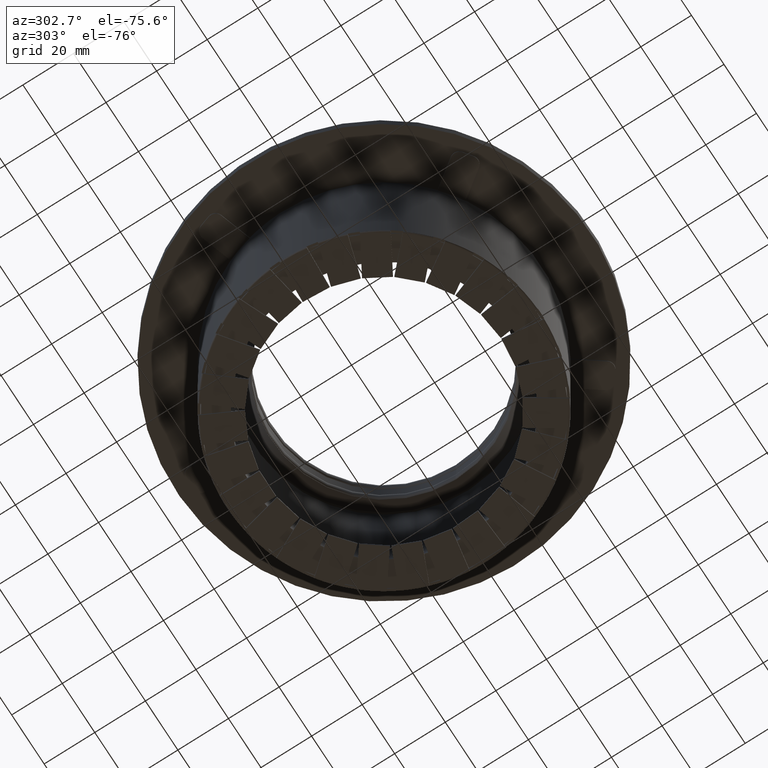
[diagram: clean part render]
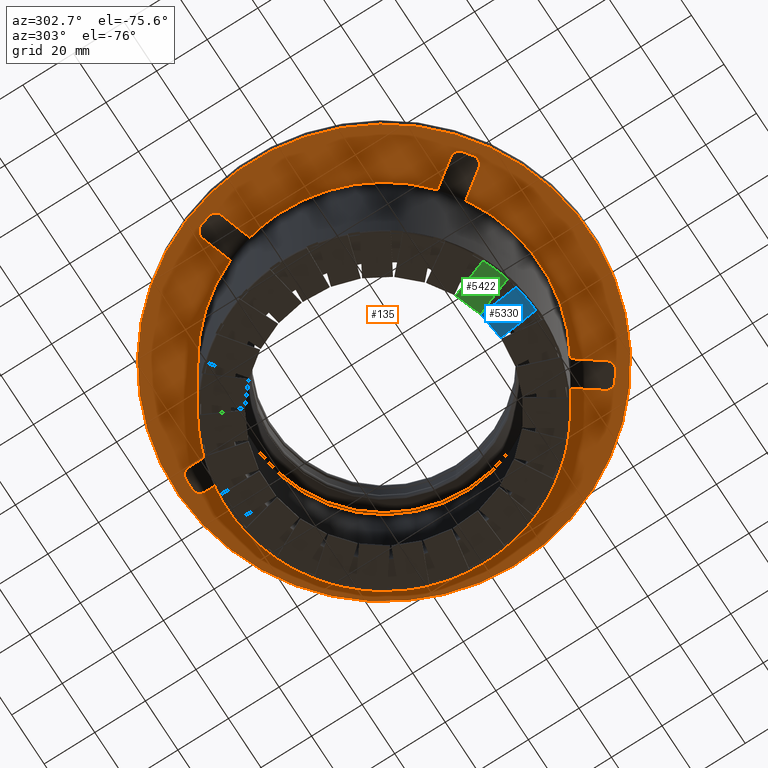
[diagram: same view with three faces highlighted in distinct colors, each labeled with its STEP entity id]
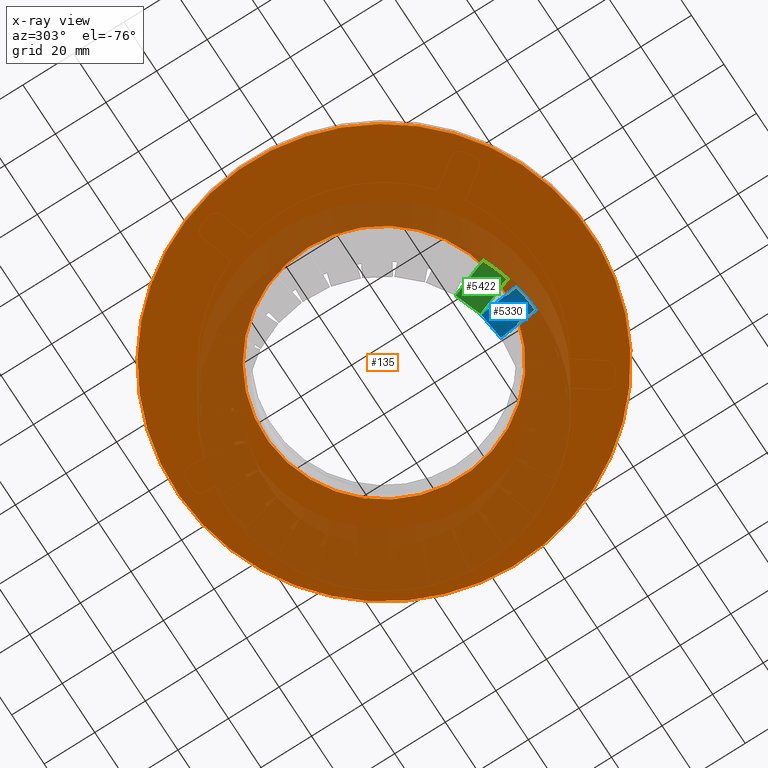
[diagram: x-ray of the same camera — body ghosted, the three highlighted faces saturated]
A machine part, auxiliary view with three faces highlighted in distinct colors.
The next image is the same camera in x-ray (body ghosted, the three faces saturated) — at least one of them is partly hidden behind the body in this view.
Their STEP definitions:

[orange] entity #135 — the highlighted planar face has unit normal (0, 0, 1).
#73=CARTESIAN_POINT('',(2.646618507755572,-46.925423924290826,64.099999999999994));
#74=VERTEX_POINT('',#73);
#75=CARTESIAN_POINT('',(1.591479E-014,-3.194574E-015,64.099999999999994));
#76=DIRECTION('',(7.883916E-019,-1.397845E-017,1.0));
#77=DIRECTION('',(-0.056311032079906,0.998413274984911,1.400066E-017));
#78=AXIS2_PLACEMENT_3D('',#75,#76,#77);
#79=CIRCLE('',#78,47.0);
#80=EDGE_CURVE('',#74,#74,#79,.T.);
#101=CARTESIAN_POINT('',(4.617504630552262,-81.869888548762731,64.099999999999994));
#102=VERTEX_POINT('',#101);
#103=CARTESIAN_POINT('',(1.591479E-014,-3.194574E-015,64.099999999999994));
#104=DIRECTION('',(7.883916E-019,-1.397845E-017,1.0));
#105=DIRECTION('',(-0.056311032079906,0.998413274984911,1.400066E-017));
#106=AXIS2_PLACEMENT_3D('',#103,#104,#105);
#107=CIRCLE('',#106,82.000000000000014);
#108=EDGE_CURVE('',#102,#102,#107,.T.);
#124=CARTESIAN_POINT('',(1.591479E-014,-3.194574E-015,64.099999999999994));
#125=DIRECTION('',(0.0,0.0,1.0));
#126=DIRECTION('',(-0.056311032079906,0.998413274984911,0.0));
#127=AXIS2_PLACEMENT_3D('',#124,#125,#126);
#128=PLANE('',#127);
#129=ORIENTED_EDGE('',*,*,#108,.F.);
#130=EDGE_LOOP('',(#129));
#131=FACE_OUTER_BOUND('',#130,.T.);
#132=ORIENTED_EDGE('',*,*,#80,.T.);
#133=EDGE_LOOP('',(#132));
#134=FACE_BOUND('',#133,.T.);
#135=ADVANCED_FACE('',(#131,#134),#128,.F.);

[blue] entity #5330 — the highlighted planar face has unit normal (0, 0, 1).
#2948=CARTESIAN_POINT('',(-1.976158821490712,-61.268138508626528,-0.9));
#2949=VERTEX_POINT('',#2948);
#2964=CARTESIAN_POINT('',(-12.206513906232725,-60.072381493136653,-0.9));
#2965=VERTEX_POINT('',#2964);
#2979=CARTESIAN_POINT('',(0.0,0.0,-0.9));
#2980=DIRECTION('',(0.0,0.0,1.0));
#2981=DIRECTION('',(-0.11609291412523,-0.993238357741943,0.0));
#2982=AXIS2_PLACEMENT_3D('',#2979,#2980,#2981);
#2983=CIRCLE('',#2982,61.299999999999997);
#2984=EDGE_CURVE('',#2965,#2949,#2983,.T.);
#3012=CARTESIAN_POINT('',(-10.455451592131602,-45.09108594838446,-0.9));
#3013=VERTEX_POINT('',#3012);
#3020=CARTESIAN_POINT('',(-10.455451592131602,-45.09108594838446,-0.9));
#3021=DIRECTION('',(-0.11609291412523,-0.993238357741943,0.0));
#3022=VECTOR('',#3021,15.083283310575224);
#3023=LINE('',#3020,#3022);
#3024=EDGE_CURVE('',#3013,#2965,#3023,.T.);
#5262=CARTESIAN_POINT('',(-0.225096507389584,-46.286842963874328,-0.9));
#5263=VERTEX_POINT('',#5262);
#5264=CARTESIAN_POINT('',(-0.225096507389584,-46.286842963874328,-0.9));
#5265=DIRECTION('',(-0.993238357741943,0.116092914125229,0.0));
#5266=VECTOR('',#5265,10.300000000000004);
#5267=LINE('',#5264,#5266);
#5268=EDGE_CURVE('',#5263,#3013,#5267,.T.);
#5294=CARTESIAN_POINT('',(-1.976158821490712,-61.268138508626528,-0.9));
#5295=DIRECTION('',(0.11609291412523,0.993238357741943,0.0));
#5296=VECTOR('',#5295,15.083283310575238);
#5297=LINE('',#5294,#5296);
#5298=EDGE_CURVE('',#2949,#5263,#5297,.T.);
#5319=CARTESIAN_POINT('',(-6.25973777096771,-53.555479336356548,-0.9));
#5320=DIRECTION('',(0.0,0.0,1.0));
#5321=DIRECTION('',(-0.993238357741943,0.11609291412523,0.0));
#5322=AXIS2_PLACEMENT_3D('',#5319,#5320,#5321);
#5323=PLANE('',#5322);
#5324=ORIENTED_EDGE('',*,*,#2984,.F.);
#5325=ORIENTED_EDGE('',*,*,#3024,.F.);
#5326=ORIENTED_EDGE('',*,*,#5268,.F.);
#5327=ORIENTED_EDGE('',*,*,#5298,.F.);
#5328=EDGE_LOOP('',(#5324,#5325,#5326,#5327));
#5329=FACE_OUTER_BOUND('',#5328,.T.);
#5330=ADVANCED_FACE('',(#5329),#5323,.F.);

[green] entity #5422 — the highlighted planar face has unit normal (0, 0, 1).
#3034=CARTESIAN_POINT('',(-16.05229631563795,-59.160914318449791,-0.9));
#3035=VERTEX_POINT('',#3034);
#3050=CARTESIAN_POINT('',(-25.731130309732798,-55.638106842195398,-0.9));
#3051=VERTEX_POINT('',#3050);
#3065=CARTESIAN_POINT('',(0.0,0.0,-0.9));
#3066=DIRECTION('',(0.0,0.0,1.0));
#3067=DIRECTION('',(-0.342020143325669,-0.939692620785908,0.0));
#3068=AXIS2_PLACEMENT_3D('',#3065,#3066,#3067);
#3069=CIRCLE('',#3068,61.299999999999997);
#3070=EDGE_CURVE('',#3051,#3035,#3069,.T.);
#3098=CARTESIAN_POINT('',(-20.572343590028197,-41.464456818024615,-0.9));
#3099=VERTEX_POINT('',#3098);
#3106=CARTESIAN_POINT('',(-20.572343590028197,-41.464456818024615,-0.9));
#3107=DIRECTION('',(-0.342020143325669,-0.939692620785909,0.0));
#3108=VECTOR('',#3107,15.08328331057522);
#3109=LINE('',#3106,#3108);
#3110=EDGE_CURVE('',#3099,#3051,#3109,.T.);
#5354=CARTESIAN_POINT('',(-10.893509595933338,-44.987264294279001,-0.9));
#5355=VERTEX_POINT('',#5354);
#5356=CARTESIAN_POINT('',(-10.893509595933338,-44.987264294279001,-0.9));
#5357=DIRECTION('',(-0.939692620785909,0.342020143325668,0.0));
#5358=VECTOR('',#5357,10.300000000000002);
#5359=LINE('',#5356,#5358);
#5360=EDGE_CURVE('',#5355,#3099,#5359,.T.);
#5386=CARTESIAN_POINT('',(-16.052296315637953,-59.160914318449784,-0.9));
#5387=DIRECTION('',(0.342020143325669,0.939692620785908,0.0));
#5388=VECTOR('',#5387,15.083283310575231);
#5389=LINE('',#5386,#5388);
#5390=EDGE_CURVE('',#3035,#5355,#5389,.T.);
#5411=CARTESIAN_POINT('',(-18.441749229397541,-50.668289583014428,-0.9));
#5412=DIRECTION('',(0.0,0.0,1.0));
#5413=DIRECTION('',(-0.939692620785908,0.342020143325669,0.0));
#5414=AXIS2_PLACEMENT_3D('',#5411,#5412,#5413);
#5415=PLANE('',#5414);
#5416=ORIENTED_EDGE('',*,*,#3070,.F.);
#5417=ORIENTED_EDGE('',*,*,#3110,.F.);
#5418=ORIENTED_EDGE('',*,*,#5360,.F.);
#5419=ORIENTED_EDGE('',*,*,#5390,.F.);
#5420=EDGE_LOOP('',(#5416,#5417,#5418,#5419));
#5421=FACE_OUTER_BOUND('',#5420,.T.);
#5422=ADVANCED_FACE('',(#5421),#5415,.F.);